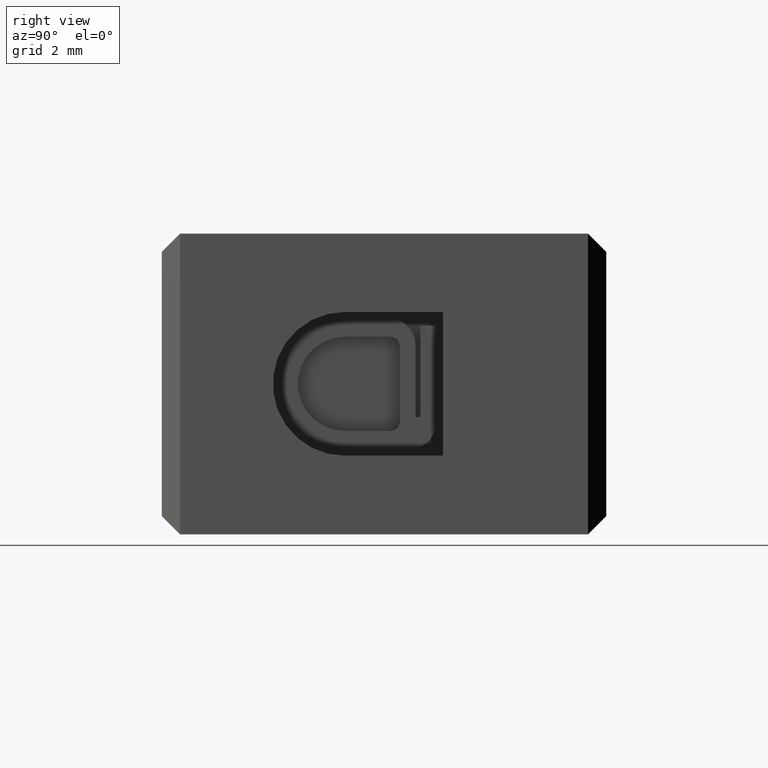
[diagram: clean part render]
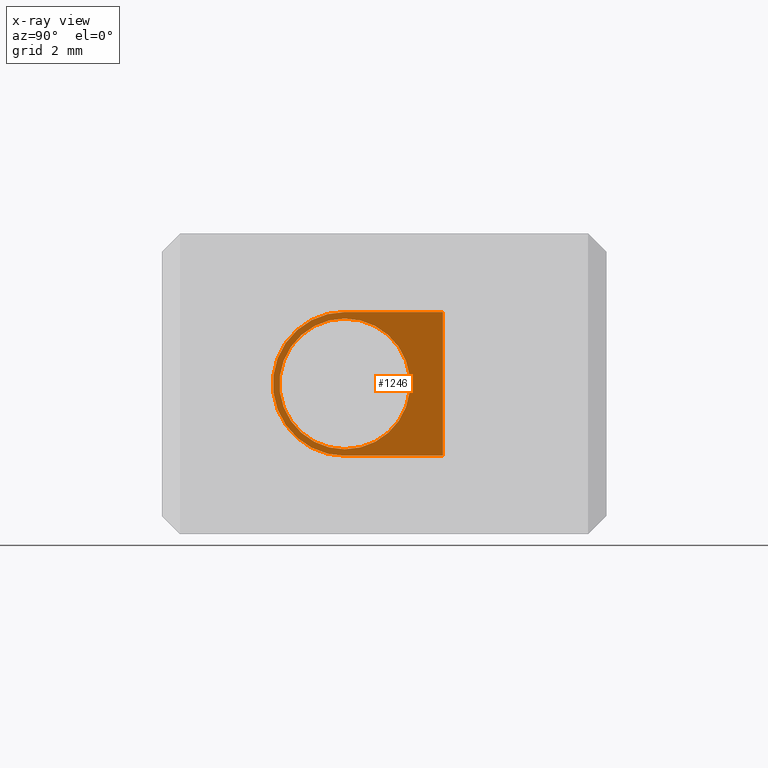
[diagram: x-ray — body ghosted, one internal face saturated and labeled with its STEP entity id]
A machine part, right view, then the same camera in x-ray: the body is ghosted and one INTERNAL B-rep face — a face not visible from any outside direction — is saturated and labeled: STEP entity #1246.
In plain terms, the highlighted planar face has unit normal (-1, 0, 0).
Its self-contained STEP definition (entity closure, byte-faithful):
#31 = ORIENTED_EDGE ( 'NONE', *, *, #1111, .F. ) ;
#37 = ORIENTED_EDGE ( 'NONE', *, *, #1026, .F. ) ;
#40 = ORIENTED_EDGE ( 'NONE', *, *, #1171, .T. ) ;
#50 = ORIENTED_EDGE ( 'NONE', *, *, #1084, .F. ) ;
#59 = ORIENTED_EDGE ( 'NONE', *, *, #1120, .F. ) ;
#82 = ORIENTED_EDGE ( 'NONE', *, *, #1030, .T. ) ;
#289 = CARTESIAN_POINT ( 'NONE',  ( 2.403805710850901000, 7.000566520338794300, -2.749883200246224600 ) ) ;
#316 = CARTESIAN_POINT ( 'NONE',  ( 2.403805710850901000, 7.000000000000000000, -2.999883141892534200 ) ) ;
#370 = CARTESIAN_POINT ( 'NONE',  ( 2.403805710850901000, 7.000000000000000000, -8.249883141892539100 ) ) ;
#390 = CARTESIAN_POINT ( 'NONE',  ( 2.403805710850901000, 10.75000000000000000, -8.250655609693069400 ) ) ;
#394 = CARTESIAN_POINT ( 'NONE',  ( 2.403805710850901000, 7.000000000000000000, -7.999883141892539100 ) ) ;
#439 = CARTESIAN_POINT ( 'NONE',  ( 2.403805710850901000, 10.75000000000000000, -2.750655611289953800 ) ) ;
#450 = CARTESIAN_POINT ( 'NONE',  ( 2.403805710850901000, 7.000000000000000000, -2.749883141892533800 ) ) ;
#491 = DIRECTION ( 'NONE',  ( -1.000000000000000000, -0.0000000000000000000, -0.0000000000000000000 ) ) ;
#498 = DIRECTION ( 'NONE',  ( 0.0000000000000000000, 0.0000000000000000000, 1.000000000000000000 ) ) ;
#503 = DIRECTION ( 'NONE',  ( 0.0000000000000000000, 0.0000000000000000000, -1.000000000000000000 ) ) ;
#508 = CARTESIAN_POINT ( 'NONE',  ( 2.403805710850901000, 7.000000000000000000, -5.499883141892536500 ) ) ;
#515 = DIRECTION ( 'NONE',  ( -1.000000000000000000, -0.0000000000000000000, -0.0000000000000000000 ) ) ;
#533 = CARTESIAN_POINT ( 'NONE',  ( 2.403805710850901000, 7.000000000000000000, -5.499883141892536500 ) ) ;
#567 = VERTEX_POINT ( 'NONE', #316 ) ;
#580 = VERTEX_POINT ( 'NONE', #289 ) ;
#617 = VERTEX_POINT ( 'NONE', #370 ) ;
#631 = VERTEX_POINT ( 'NONE', #394 ) ;
#656 = VERTEX_POINT ( 'NONE', #390 ) ;
#663 = VERTEX_POINT ( 'NONE', #450 ) ;
#679 = VERTEX_POINT ( 'NONE', #439 ) ;
#709 = EDGE_LOOP ( 'NONE', ( #50, #962, #31, #37, #59 ) ) ;
#719 = EDGE_LOOP ( 'NONE', ( #82, #40 ) ) ;
#962 = ORIENTED_EDGE ( 'NONE', *, *, #1085, .F. ) ;
#1026 = EDGE_CURVE ( 'NONE', #663, #580, #1344, .T. ) ;
#1030 = EDGE_CURVE ( 'NONE', #631, #567, #1366, .T. ) ;
#1084 = EDGE_CURVE ( 'NONE', #656, #617, #1799, .T. ) ;
#1085 = EDGE_CURVE ( 'NONE', #679, #656, #1802, .T. ) ;
#1111 = EDGE_CURVE ( 'NONE', #580, #679, #1859, .T. ) ;
#1120 = EDGE_CURVE ( 'NONE', #617, #663, #1484, .T. ) ;
#1171 = EDGE_CURVE ( 'NONE', #567, #631, #1558, .T. ) ;
#1246 = ADVANCED_FACE ( 'NONE', ( #2382, #2358 ), #2403, .F. ) ;
#1340 = AXIS2_PLACEMENT_3D ( 'NONE', #508, #515, #503 ) ;
#1344 = CIRCLE ( 'NONE', #1359, 2.750000000000002700 ) ;
#1359 = AXIS2_PLACEMENT_3D ( 'NONE', #533, #491, #498 ) ;
#1366 = CIRCLE ( 'NONE', #1340, 2.500000000000002200 ) ;
#1389 = VECTOR ( 'NONE', #1815, 1000.000000000000000 ) ;
#1438 = VECTOR ( 'NONE', #1834, 1000.000000000000000 ) ;
#1455 = AXIS2_PLACEMENT_3D ( 'NONE', #1910, #1900, #1886 ) ;
#1484 = CIRCLE ( 'NONE', #1455, 2.750000000000002700 ) ;
#1501 = VECTOR ( 'NONE', #1864, 1000.000000000000000 ) ;
#1531 = AXIS2_PLACEMENT_3D ( 'NONE', #2094, #2084, #2079 ) ;
#1558 = CIRCLE ( 'NONE', #1531, 2.500000000000002200 ) ;
#1668 = AXIS2_PLACEMENT_3D ( 'NONE', #2405, #2376, #2356 ) ;
#1799 = LINE ( 'NONE', #1825, #1438 ) ;
#1802 = LINE ( 'NONE', #1821, #1389 ) ;
#1815 = DIRECTION ( 'NONE',  ( -0.0000000000000000000, -0.0000000000000000000, -1.000000000000000000 ) ) ;
#1821 = CARTESIAN_POINT ( 'NONE',  ( 2.403805710850901400, 10.75000000000000000, -5.499883141892536500 ) ) ;
#1825 = CARTESIAN_POINT ( 'NONE',  ( 2.403805710850901400, 10.75000000000000000, -8.250655609693069400 ) ) ;
#1834 = DIRECTION ( 'NONE',  ( 0.0000000000000000000, -0.9999999787837695600, 0.0002059914091044466500 ) ) ;
#1841 = CARTESIAN_POINT ( 'NONE',  ( 2.403805710850901400, 7.000566520338793500, -2.749883200246225000 ) ) ;
#1859 = LINE ( 'NONE', #1841, #1501 ) ;
#1864 = DIRECTION ( 'NONE',  ( 0.0000000000000000000, 0.9999999787804762000, -0.0002060073959249475000 ) ) ;
#1886 = DIRECTION ( 'NONE',  ( 0.0000000000000000000, 0.0000000000000000000, 1.000000000000000000 ) ) ;
#1900 = DIRECTION ( 'NONE',  ( -1.000000000000000000, -0.0000000000000000000, -0.0000000000000000000 ) ) ;
#1910 = CARTESIAN_POINT ( 'NONE',  ( 2.403805710850901000, 7.000000000000000000, -5.499883141892536500 ) ) ;
#2079 = DIRECTION ( 'NONE',  ( 0.0000000000000000000, 0.0000000000000000000, -1.000000000000000000 ) ) ;
#2084 = DIRECTION ( 'NONE',  ( -1.000000000000000000, -0.0000000000000000000, -0.0000000000000000000 ) ) ;
#2094 = CARTESIAN_POINT ( 'NONE',  ( 2.403805710850901000, 7.000000000000000000, -5.499883141892536500 ) ) ;
#2356 = DIRECTION ( 'NONE',  ( 0.0000000000000000000, 0.0000000000000000000, 1.000000000000000000 ) ) ;
#2358 = FACE_BOUND ( 'NONE', #719, .T. ) ;
#2376 = DIRECTION ( 'NONE',  ( -1.000000000000000000, 0.0000000000000000000, 0.0000000000000000000 ) ) ;
#2382 = FACE_OUTER_BOUND ( 'NONE', #709, .T. ) ;
#2403 = PLANE ( 'NONE',  #1668 ) ;
#2405 = CARTESIAN_POINT ( 'NONE',  ( 2.403805710850901400, 7.000000000000000000, -5.499883141892536500 ) ) ;